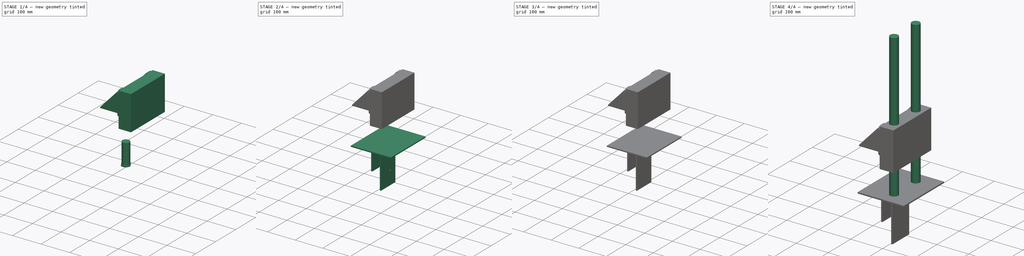
[diagram: build sequence overview — one tinted view per stage of 4, left to right]
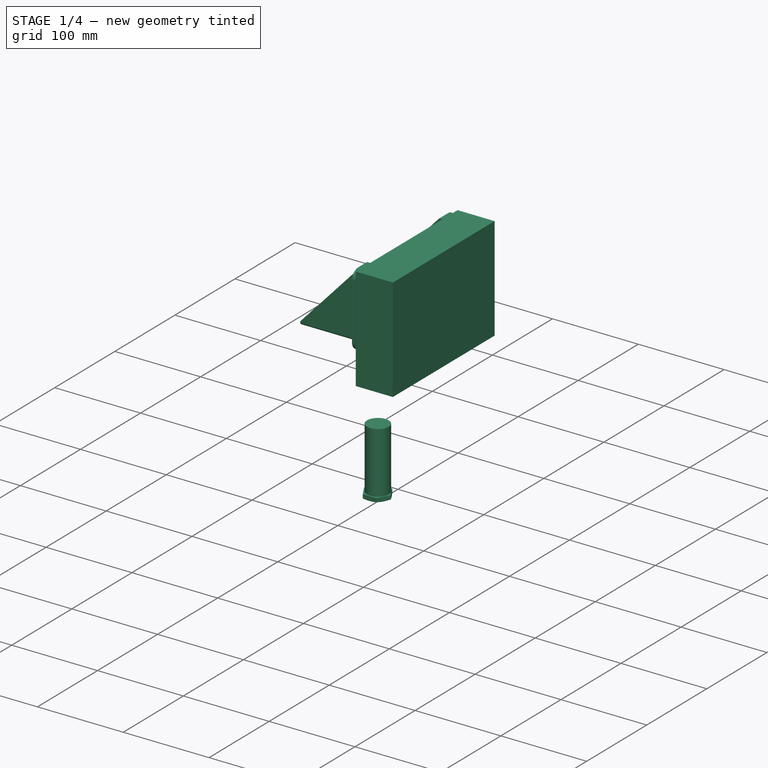
[diagram: stage 1 of 4 — iso view after this stage's code; geometry added in this stage tinted green]
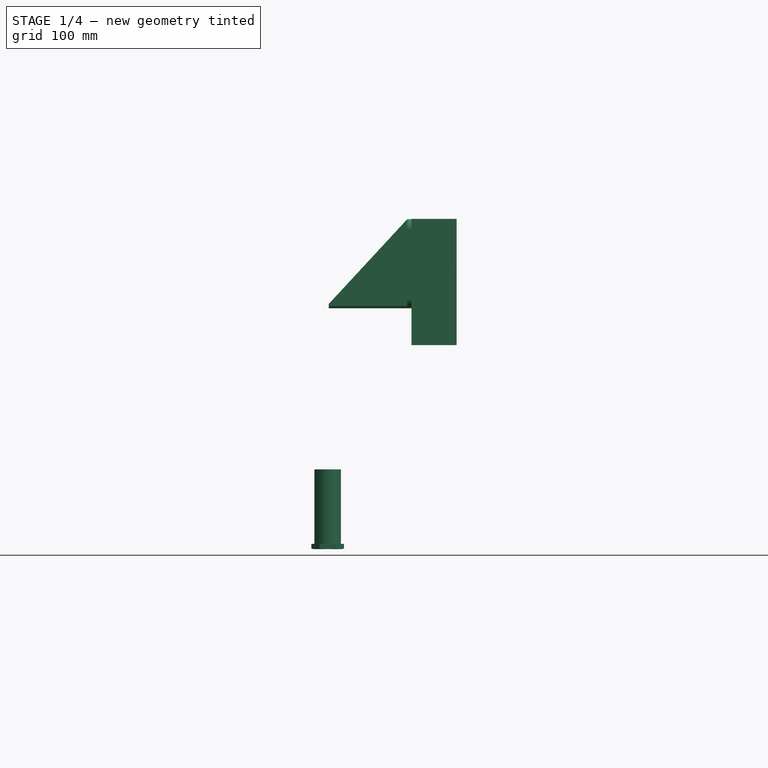
[diagram: stage 1 of 4 — front view after this stage's code; geometry added in this stage tinted green]
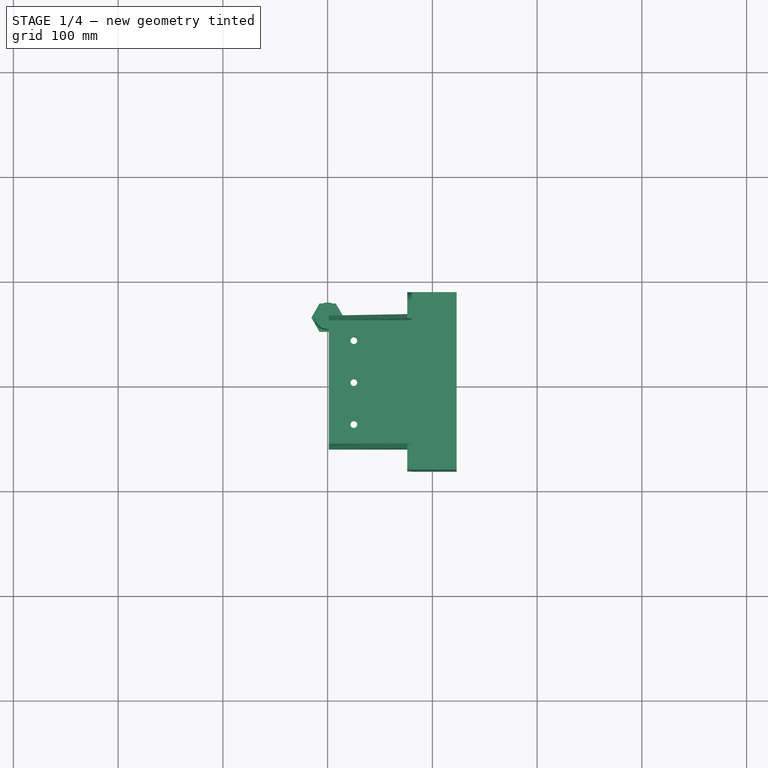
[diagram: stage 1 of 4 — top view after this stage's code; geometry added in this stage tinted green]
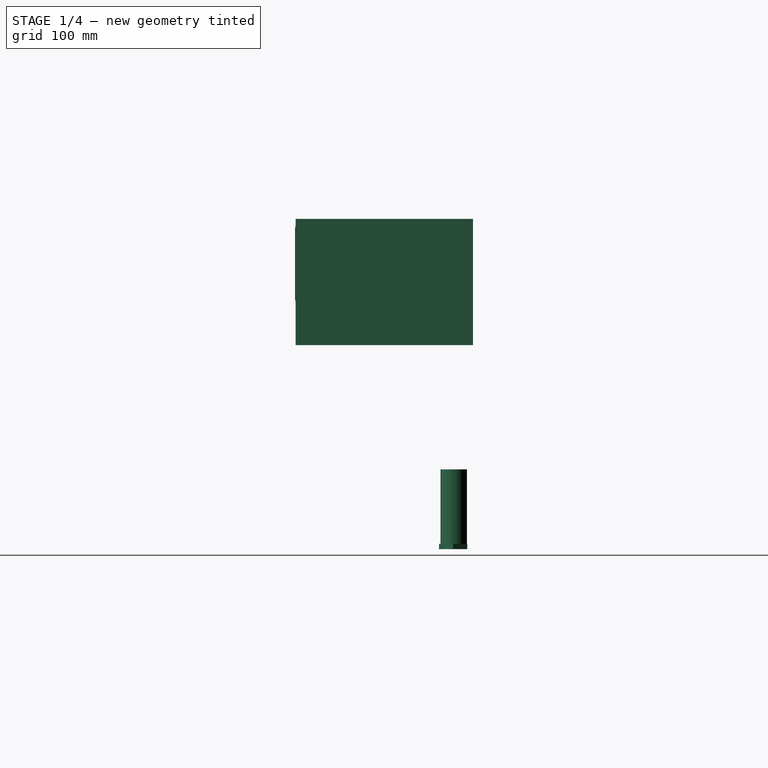
[diagram: stage 1 of 4 — right view after this stage's code; geometry added in this stage tinted green]
FCSTD DOCUMENT  (FreeCAD 0.16R6712 (Git))
Label: small head
License: All rights reserved
LicenseURL: http://en.wikipedia.org/wiki/All_rights_reserved
objects: Part::Feature×15, Sketcher::SketchObject×8, PartDesign::Pad×5, Part::Cylinder×2, PartDesign::Pocket×2, App::MeasureDistance×1
note: 39 computed .brp shape members not serialized (recipe doc carries the construction recipe); baked Part::Feature solids carry a one-line shape summary decoded from their .brp

FEATURE [Sketcher::SketchObject] Sketch005
  Placement = pos=(0,0,0) rot=(1,0,0;3.14159rad)
  sketch-geometry (7):
    g0: LineSegment [constr] StartX=0 StartY=0 StartZ=0 EndX=-100 EndY=0 EndZ=0
    g1: LineSegment [constr] StartX=-100 StartY=0 StartZ=0 EndX=-100 EndY=-66.5 EndZ=0
    g2: LineSegment [constr] StartX=-100 StartY=-66.5 StartZ=0 EndX=0 EndY=-66.5 EndZ=0
    g3: LineSegment [constr] StartX=0 StartY=-66.5 StartZ=0 EndX=0 EndY=0 EndZ=0
    g4: Circle CenterX=-100 CenterY=-66.5 CenterZ=0 NormalX=0 NormalY=0 NormalZ=1 Radius=10.6151
    g5: ArcOfCircle CenterX=-100 CenterY=-66.5 CenterZ=0 NormalX=0 NormalY=0 NormalZ=1 Radius=12.462 StartAngle=1.5708 EndAngle=4.71239
    g6: LineSegment [constr] StartX=-100 StartY=-66.5 StartZ=0 EndX=-100 EndY=-78.962 EndZ=0
  constraints (17):
    c: Coincident(g0,g1)
    c: Coincident(g1,g2)
    c: Coincident(g2,g3)
    c: Coincident(g3,g0)
    c: Horizontal(g0)
    c: Horizontal(g2)
    c: Vertical(g1)
    c: Vertical(g3)
    c: Coincident(g0,g-1)
    c: DistanceX(g2,g2) = 100
    c: DistanceY(g1,g1) = 66.5
    c: Coincident(g4,g1)
    c: Coincident(g5,g1)
    c: PointOnObject(g5,g1)
    c: Coincident(g6,g1)
    c: Coincident(g6,g5)
    c: Vertical(g6)
FEATURE [Part::Feature] Cut001  label="z_probe_half_nut"
  Placement = pos=(-100,66,-576) rot=(1,0,0;1.5708rad)
  shape: bbox 31.18 x 31.18 x 5 mm, 17 faces (baked)
FEATURE [Part::Feature] Cut002  label="z_probe_half_nut001"
  Placement = pos=(-100,66,-571) rot=(1,0,0;1.5708rad)
  shape: bbox 31.18 x 31.18 x 5 mm, 17 faces (baked)
FEATURE [Part::Feature] Pocket013011  label="valve_mount"
  Placement = pos=(-20,0,-315) rot=(0.57735,-0.57735,-0.57735;2.0944rad)
  shape: bbox 79 x 170 x 85 mm, 41 faces (baked)
FEATURE [Part::Feature] Pad002001  label="igniter_power_suply"
  Placement = pos=(26,0,-345) rot=(0.57735,0.57735,0.57735;2.0944rad)
  shape: bbox 53 x 166 x 66 mm, 59 faces (baked)
FEATURE [Part::Feature] Fusion002004  label="torch_tip001"
  Placement = pos=(-8,0,-503) rot=(0,0,1;3.14159rad)
  shape: bbox 171 x 35.37 x 108.6 mm, 68 faces (baked)
FEATURE [App::MeasureDistance] Distance  label="Distance: 6.6357 in"
  Distance = 168.547
  P1 = (10.5649,-81.6552,-270)
  P2 = (33.9754,85,-260.727)
FEATURE [Sketcher::SketchObject] Sketch006
  Placement = pos=(-100,66,-585) rot=(1,0,0;3.14159rad)
  Support = -> Cut001 [Face3]
  sketch-geometry (1):
    g0: Circle CenterX=0 CenterY=-0.598412 CenterZ=0 NormalX=0 NormalY=0 NormalZ=1 Radius=12.6562
  constraints (1):
    c: PointOnObject(g0,g-2)
FEATURE [PartDesign::Pad] Pad002002
  Length = 76.2
  Length2 = 100
  Placement = pos=(-100,66,-576) rot=(1,0,0;1.5708rad)
  Reversed = true
  Sketch = -> Sketch006
  Type = 0
FEATURE [Sketcher::SketchObject] Sketch007
  Placement = pos=(-20,0,-315) rot=(0.57735,-0.57735,0.57735;4.18879rad)
  Support = -> Pocket013011 [Face5]
  sketch-geometry (4):
    g0: LineSegment StartX=-84.9979 StartY=75.2847 StartZ=0 EndX=84.3762 EndY=75.2847 EndZ=0
    g1: LineSegment StartX=84.3762 StartY=75.2847 StartZ=0 EndX=84.3762 EndY=-45.3097 EndZ=0
    g2: LineSegment StartX=84.3762 StartY=-45.3097 StartZ=0 EndX=-84.9979 EndY=-45.3097 EndZ=0
    g3: LineSegment StartX=-84.9979 StartY=-45.3097 StartZ=0 EndX=-84.9979 EndY=75.2847 EndZ=0
  constraints (8):
    c: Coincident(g0,g1)
    c: Coincident(g1,g2)
    c: Coincident(g2,g3)
    c: Coincident(g3,g0)
    c: Horizontal(g0)
    c: Horizontal(g2)
    c: Vertical(g1)
    c: Vertical(g3)
FEATURE [PartDesign::Pad] Pad002003
  Length = 43.18
  Length2 = 100
  Placement = pos=(-20,0,-315) rot=(0.57735,-0.57735,-0.57735;2.0944rad)
  Sketch = -> Sketch007
  Type = 0
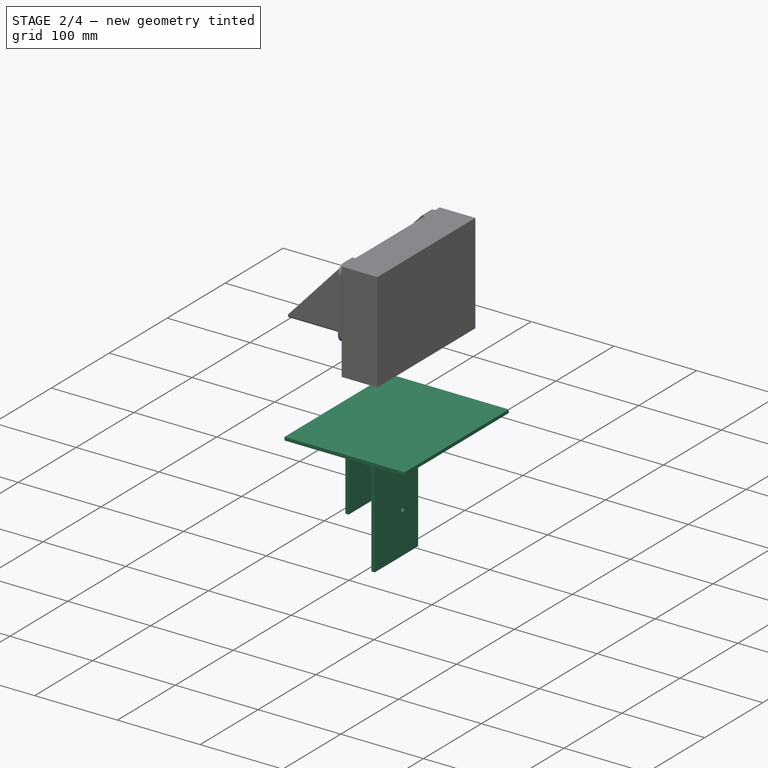
[diagram: stage 2 of 4 — iso view after this stage's code; geometry added in this stage tinted green]
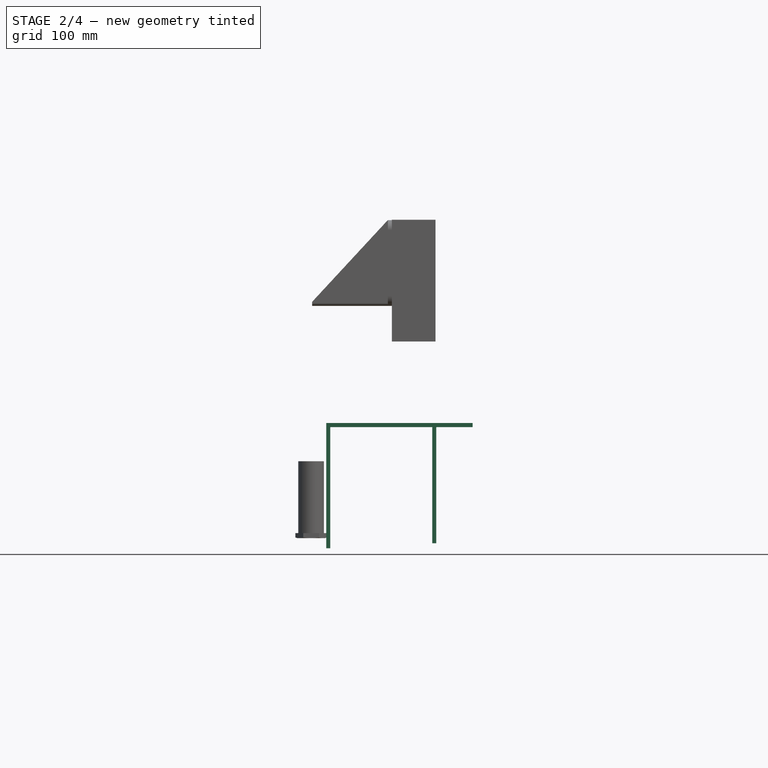
[diagram: stage 2 of 4 — front view after this stage's code; geometry added in this stage tinted green]
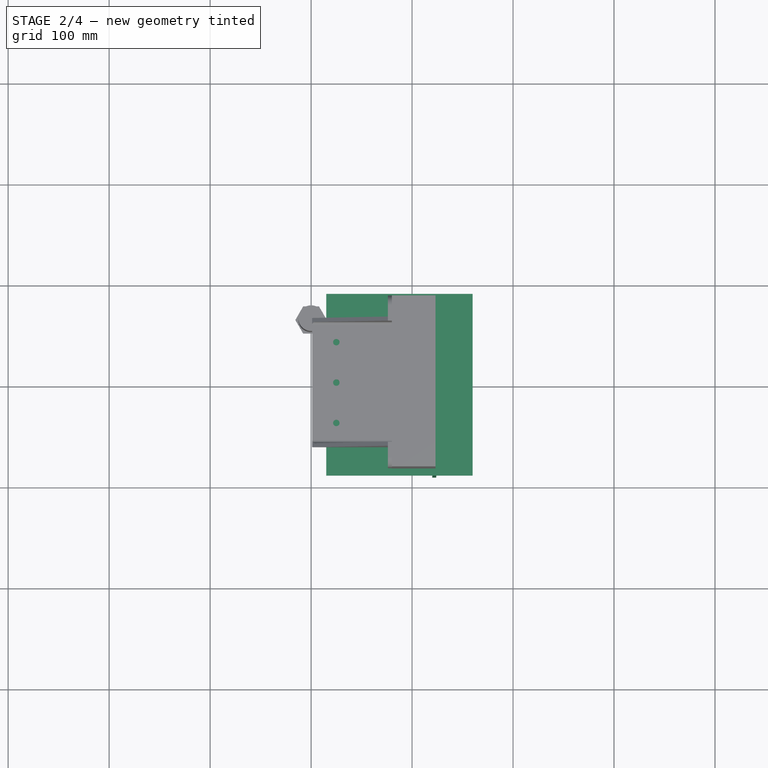
[diagram: stage 2 of 4 — top view after this stage's code; geometry added in this stage tinted green]
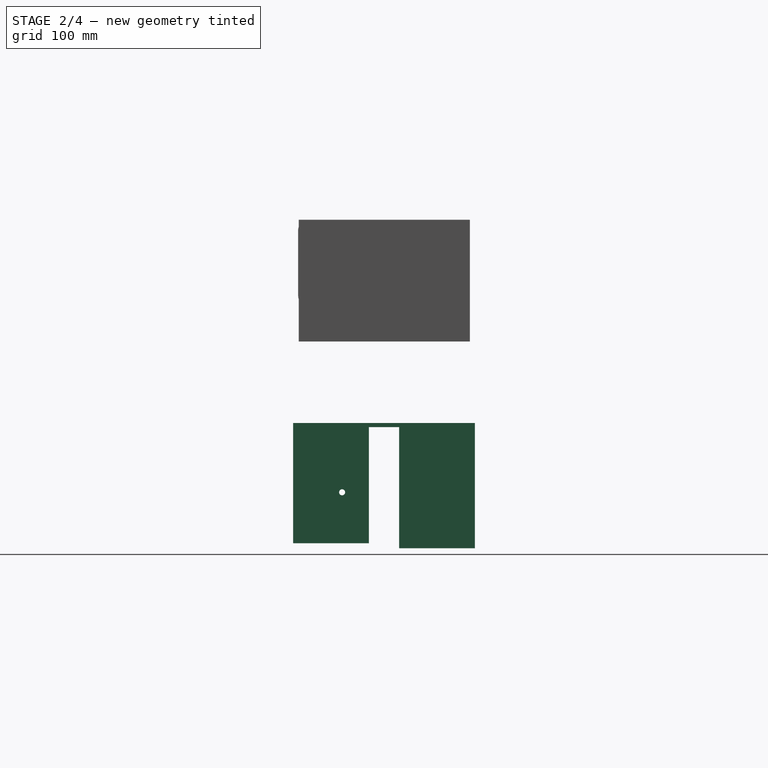
[diagram: stage 2 of 4 — right view after this stage's code; geometry added in this stage tinted green]
FEATURE [Sketcher::SketchObject] Sketch003
  ExternalGeometry = -> [Pad005]
  Placement = pos=(20,90,0) rot=(0.707107,0,-0.707107;3.14159rad)
  sketch-geometry (5):
    g0: LineSegment [constr] StartX=590 StartY=105 StartZ=0 EndX=539.6 EndY=105 EndZ=0
    g1: LineSegment [constr] StartX=539.6 StartY=105 StartZ=0 EndX=539.6 EndY=131.5 EndZ=0
    g2: LineSegment [constr] StartX=539.6 StartY=131.5 StartZ=0 EndX=590 EndY=131.5 EndZ=0
    g3: LineSegment [constr] StartX=590 StartY=131.5 StartZ=0 EndX=590 EndY=105 EndZ=0
    g4: Circle CenterX=539.6 CenterY=131.5 CenterZ=0 NormalX=0 NormalY=0 NormalZ=1 Radius=3
  constraints (13):
    c: Coincident(g0,g1)
    c: Coincident(g1,g2)
    c: Coincident(g2,g3)
    c: Coincident(g3,g0)
    c: Horizontal(g0)
    c: Horizontal(g2)
    c: Vertical(g1)
    c: Vertical(g3)
    c: Coincident(g0,g-4)
    c: DistanceX(g2,g2) = 50.4
    c: DistanceY(g1,g1) = 26.5
    c: Coincident(g4,g1)
    c: Radius(g4) = 3
FEATURE [PartDesign::Pocket] Pocket
  Length = 5
  Placement = pos=(0,90,0) rot=(1,0,0;1.5708rad)
  Type = 2
FEATURE [Sketcher::SketchObject] Sketch004
  Placement = pos=(0,90,-475) rot=(1,0,0;3.14159rad)
  sketch-geometry (3):
    g0: Circle CenterX=0 CenterY=120 CenterZ=0 NormalX=0 NormalY=0 NormalZ=1 Radius=3.5
    g1: Circle CenterX=0 CenterY=90 CenterZ=0 NormalX=0 NormalY=0 NormalZ=1 Radius=3.5
    g2: Circle CenterX=0 CenterY=60 CenterZ=0 NormalX=0 NormalY=0 NormalZ=1 Radius=3.5
  constraints (9):
    c: PointOnObject(g0,g-2)
    c: PointOnObject(g1,g-2)
    c: PointOnObject(g2,g-2)
    c: Equal(g2,g1)
    c: Equal(g1,g0)
    c: Radius(g0) = 3.5
    c: DistanceY(g-1,g0) = 120
    c: DistanceY(g1,g0) = 30
    c: DistanceY(g2,g1) = 30
FEATURE [PartDesign::Pocket] Pocket013010  label="bottom_plate"
  Length = 5
  Placement = pos=(0,90,0) rot=(1,0,0;1.5708rad)
  Type = 2
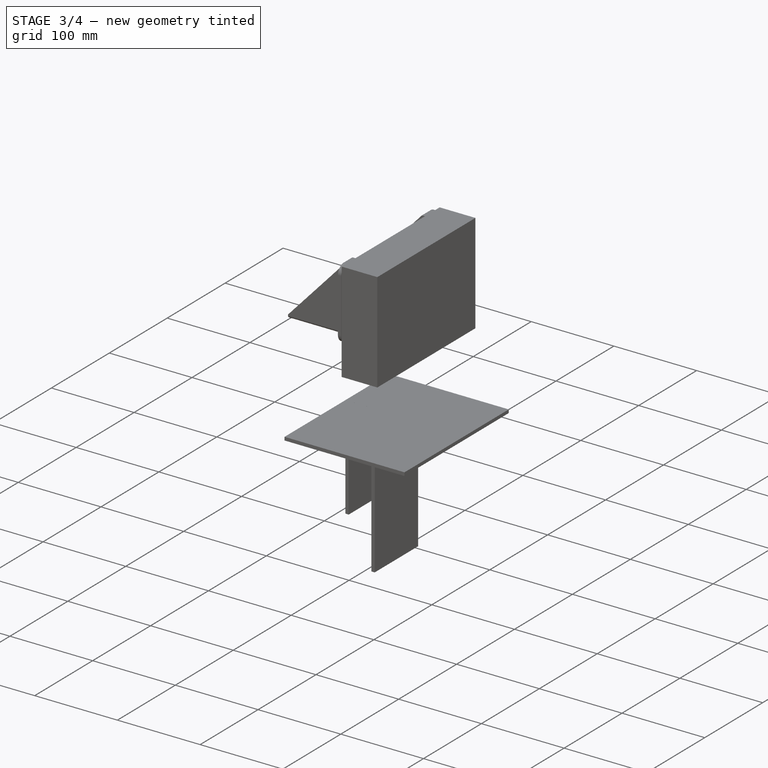
[diagram: stage 3 of 4 — iso view after this stage's code; geometry added in this stage tinted green]
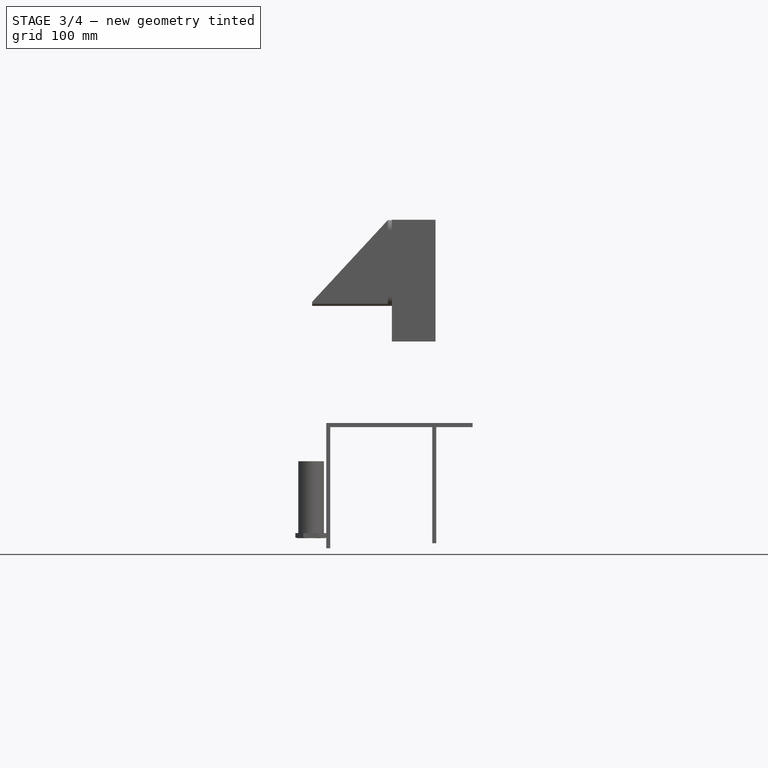
[diagram: stage 3 of 4 — front view after this stage's code; geometry added in this stage tinted green]
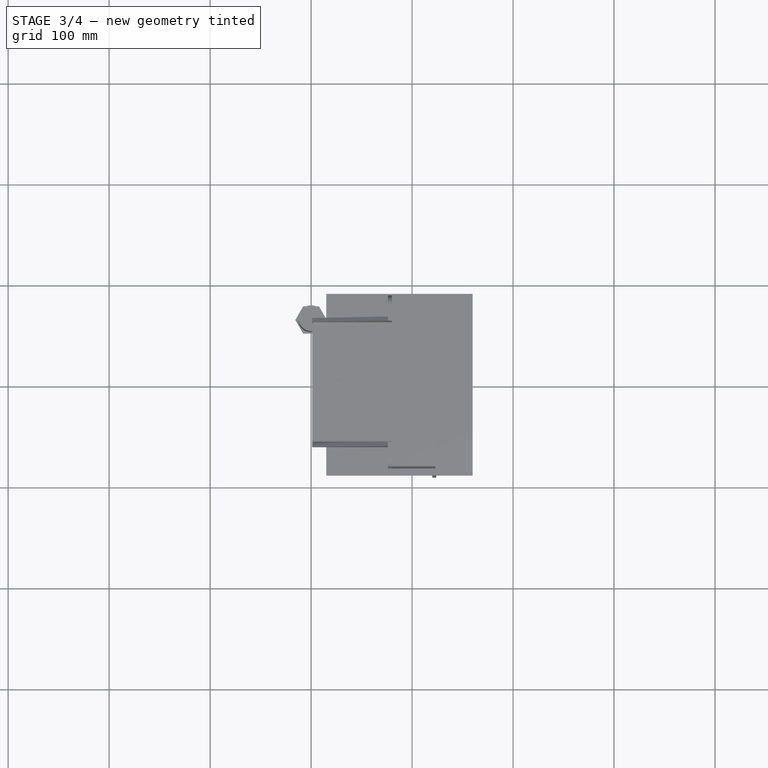
[diagram: stage 3 of 4 — top view after this stage's code; geometry added in this stage tinted green]
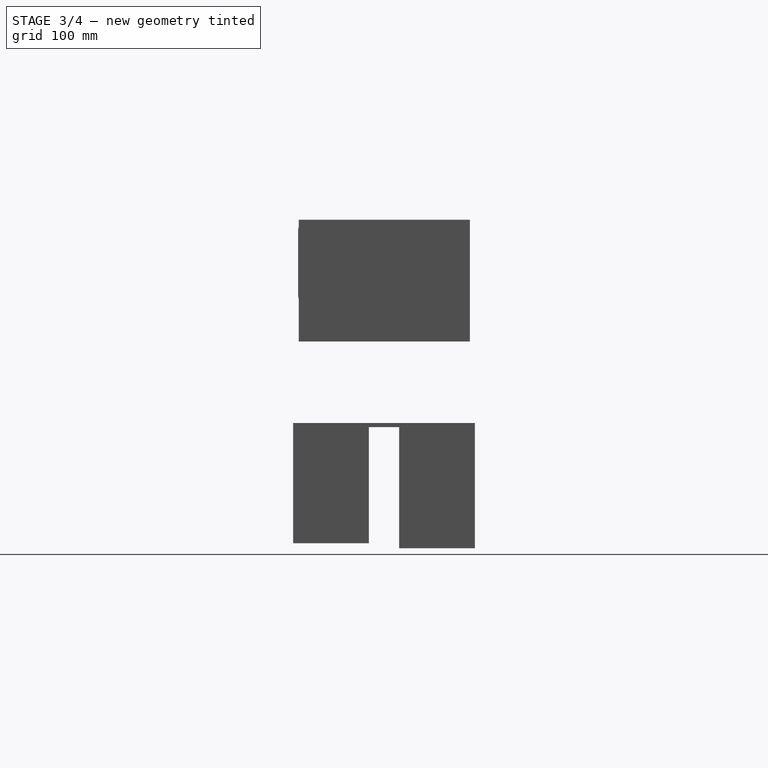
[diagram: stage 3 of 4 — right view after this stage's code; geometry added in this stage tinted green]
FEATURE [Part::Feature] Pocket001001  label="nema23_motor"
  Placement = pos=(-21.5,0,-59.3) rot=(0,1,0;1.5708rad)
  shape: bbox 137 x 57 x 57 mm, 36 faces (baked)
FEATURE [Part::Feature] Pocket013007  label="idler_z_1"
  Placement = pos=(0,0,-421) rot=(0,-1,0;1.5708rad)
  shape: bbox 20.32 x 120.5 x 70 mm, 81 faces (baked)
FEATURE [Part::Feature] Fusion002001  label="fl_205_1_cut_oxy"
  Placement = pos=(-75,0,-338.5) rot=(0,0,1;3.14159rad)
  shape: bbox 54 x 34 x 70 mm, 60 faces (baked)
FEATURE [Part::Feature] Chamfer001  label="pipe_90_deg_cut_oxy"
  Placement = pos=(-60,0,-338.5) rot=(0,0,1;3.14159rad)
  shape: bbox 49.77 x 15 x 54.77 mm, 8 faces (baked)
FEATURE [Part::Feature] Fusion002002  label="fl_205_1_mix_oxy"
  Placement = pos=(-75,-40,-338.5) rot=(0,0,1;3.14159rad)
  shape: bbox 54 x 34 x 70 mm, 60 faces (baked)
FEATURE [Part::Feature] Chamfer002  label="pipe_90_deg_mix_oxy"
  Placement = pos=(-60,-40,-338.5) rot=(0,0,1;3.14159rad)
  shape: bbox 49.77 x 15 x 54.77 mm, 8 faces (baked)
FEATURE [Part::Feature] Fusion002003  label="fl_205_1_cut_oxy001"
  Placement = pos=(-75,40,-338.5) rot=(0,0,1;3.14159rad)
  shape: bbox 54 x 34 x 70 mm, 60 faces (baked)
FEATURE [Part::Feature] Chamfer003  label="pipe_90_deg_cut_oxy001"
  Placement = pos=(-60,40,-338.5) rot=(0,0,1;3.14159rad)
  shape: bbox 49.77 x 15 x 54.77 mm, 8 faces (baked)
FEATURE [Part::Feature] Pocket013009  label="igniter"
  Placement = pos=(20,-34,-532) rot=(0,0,1;3.14159rad)
  shape: bbox 40 x 55 x 82 mm, 24 faces (baked)
FEATURE [Sketcher::SketchObject] Sketch
  Placement = pos=(0,90,0) rot=(1,0,0;1.5708rad)
  sketch-geometry (7):
    g0: LineSegment StartX=-85 StartY=-595 StartZ=0 EndX=-85 EndY=-471 EndZ=0
    g1: LineSegment StartX=-85 StartY=-471 StartZ=0 EndX=60 EndY=-471 EndZ=0
    g2: LineSegment StartX=60 StartY=-471 StartZ=0 EndX=60 EndY=-475 EndZ=0
    g3: LineSegment StartX=60 StartY=-475 StartZ=0 EndX=-81 EndY=-475 EndZ=0
    g4: LineSegment StartX=-81 StartY=-475 StartZ=0 EndX=-81 EndY=-595 EndZ=0
    g5: LineSegment StartX=-81 StartY=-595 StartZ=0 EndX=-85 EndY=-595 EndZ=0
    g6: LineSegment [constr] StartX=0 StartY=0 StartZ=0 EndX=0 EndY=-471 EndZ=0
  constraints (21):
    c: Vertical(g0)
    c: Coincident(g0,g1)
    c: Horizontal(g1)
    c: Coincident(g1,g2)
    c: Vertical(g2)
    c: Coincident(g2,g3)
    c: Horizontal(g3)
    c: Coincident(g3,g4)
    c: Vertical(g4)
    c: Coincident(g4,g5)
    c: Coincident(g5,g0)
    c: Horizontal(g5)
    c: Equal(g2,g5)
    c: DistanceX(g5,g5) = 4
    c: DistanceY(g0,g0) = 124
    c: DistanceX(g1,g1) = 145
    c: Coincident(g6,g-1)
    c: Vertical(g6)
    c: DistanceY(g6,g6) = 471
    c: PointOnObject(g6,g1)
    c: DistanceX(g6,g1) = 60
FEATURE [PartDesign::Pad] Pad
  Length = 75
  Length2 = 100
  Placement = pos=(0,90,0) rot=(1,0,0;1.5708rad)
  Type = 0
FEATURE [Sketcher::SketchObject] Sketch001
  ExternalGeometry = -> [Pad]
  Placement = pos=(0,15,0) rot=(1,0,0;1.5708rad)
  sketch-geometry (4):
    g0: LineSegment StartX=-85 StartY=-471 StartZ=0 EndX=60 EndY=-471 EndZ=0
    g1: LineSegment StartX=60 StartY=-471 StartZ=0 EndX=60 EndY=-475 EndZ=0
    g2: LineSegment StartX=60 StartY=-475 StartZ=0 EndX=-85 EndY=-475 EndZ=0
    g3: LineSegment StartX=-85 StartY=-471 StartZ=0 EndX=-85 EndY=-475 EndZ=0
  constraints (11):
    c: Coincident(g0,g1)
    c: Coincident(g1,g2)
    c: Horizontal(g0)
    c: Horizontal(g2)
    c: Vertical(g1)
    c: Coincident(g1,g-4)
    c: PointOnObject(g0,g-3)
    c: Coincident(g3,g0)
    c: Coincident(g3,g2)
    c: Vertical(g3)
    c: DistanceX(g0,g0) = 145
FEATURE [PartDesign::Pad] Pad004
  Length = 30
  Length2 = 100
  Placement = pos=(0,90,0) rot=(1,0,0;1.5708rad)
  Type = 0
FEATURE [Sketcher::SketchObject] Sketch002
  ExternalGeometry = -> [Pad004]
  Placement = pos=(0,-15,0) rot=(1,0,0;1.5708rad)
  sketch-geometry (8):
    g0: LineSegment StartX=-85 StartY=-471 StartZ=0 EndX=60 EndY=-471 EndZ=0
    g1: LineSegment StartX=60 StartY=-471 StartZ=0 EndX=60 EndY=-475 EndZ=0
    g2: LineSegment StartX=60 StartY=-475 StartZ=0 EndX=24 EndY=-475 EndZ=0
    g3: LineSegment StartX=24 StartY=-475 StartZ=0 EndX=24 EndY=-590 EndZ=0
    g4: LineSegment StartX=24 StartY=-590 StartZ=0 EndX=20 EndY=-590 EndZ=0
    g5: LineSegment StartX=20 StartY=-590 StartZ=0 EndX=20 EndY=-475 EndZ=0
    g6: LineSegment StartX=20 StartY=-475 StartZ=0 EndX=-85 EndY=-475 EndZ=0
    g7: LineSegment StartX=-85 StartY=-475 StartZ=0 EndX=-85 EndY=-471 EndZ=0
  constraints (21):
    c: Coincident(g-3,g0)
    c: Coincident(g0,g-4)
    c: Coincident(g0,g1)
    c: Coincident(g1,g-4)
    c: Coincident(g1,g2)
    c: Horizontal(g2)
    c: Coincident(g2,g3)
    c: Vertical(g3)
    c: Coincident(g3,g4)
    c: Coincident(g4,g5)
    c: Vertical(g5)
    c: Coincident(g5,g6)
    c: Horizontal(g6)
    c: Coincident(g6,g7)
    c: Coincident(g7,g0)
    c: Horizontal(g4)
    c: Vertical(g7)
    c: Equal(g7,g4)
    c: Equal(g4,g-4)
    c: DistanceX(g2,g2) = 36
    c: DistanceY(g3,g3) = 115
FEATURE [PartDesign::Pad] Pad005
  Length = 75
  Length2 = 100
  Placement = pos=(0,90,0) rot=(1,0,0;1.5708rad)
  Type = 0
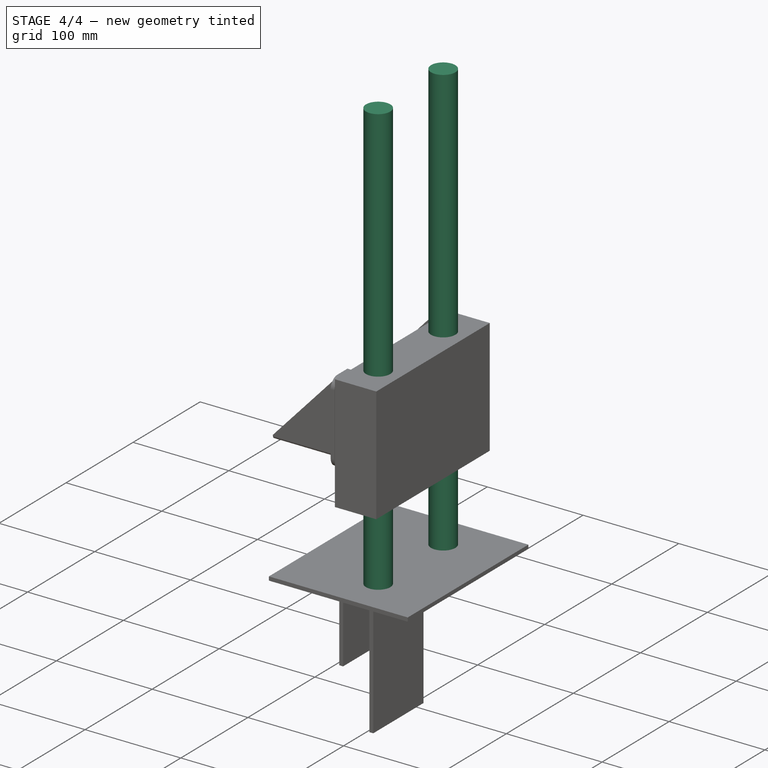
[diagram: stage 4 of 4 — iso view after this stage's code; geometry added in this stage tinted green]
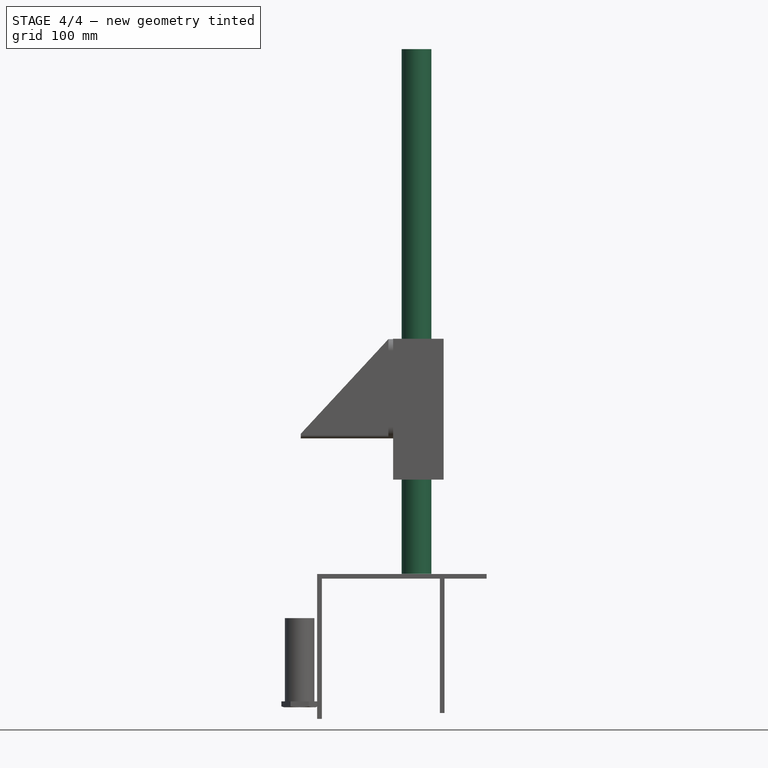
[diagram: stage 4 of 4 — front view after this stage's code; geometry added in this stage tinted green]
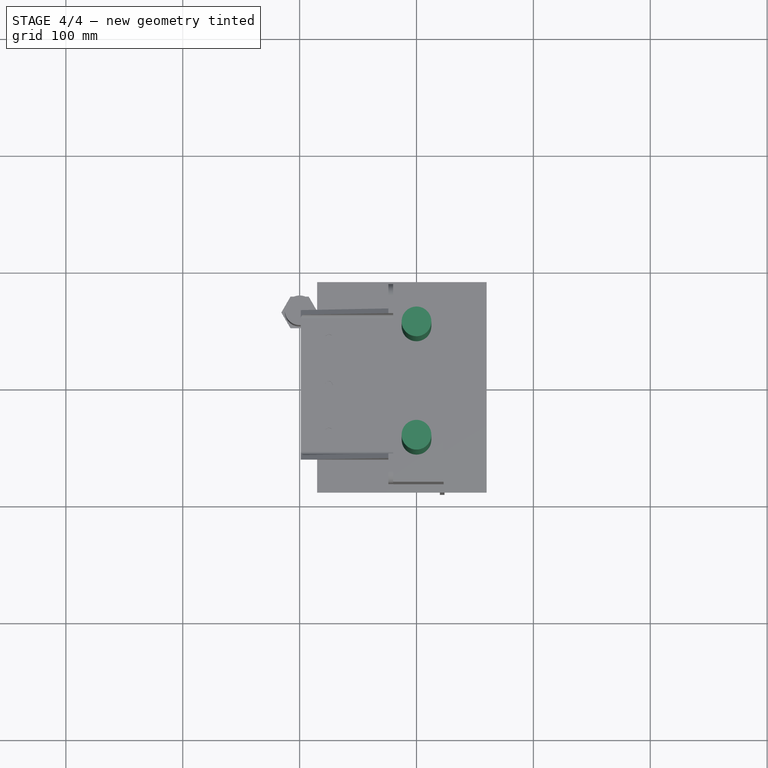
[diagram: stage 4 of 4 — top view after this stage's code; geometry added in this stage tinted green]
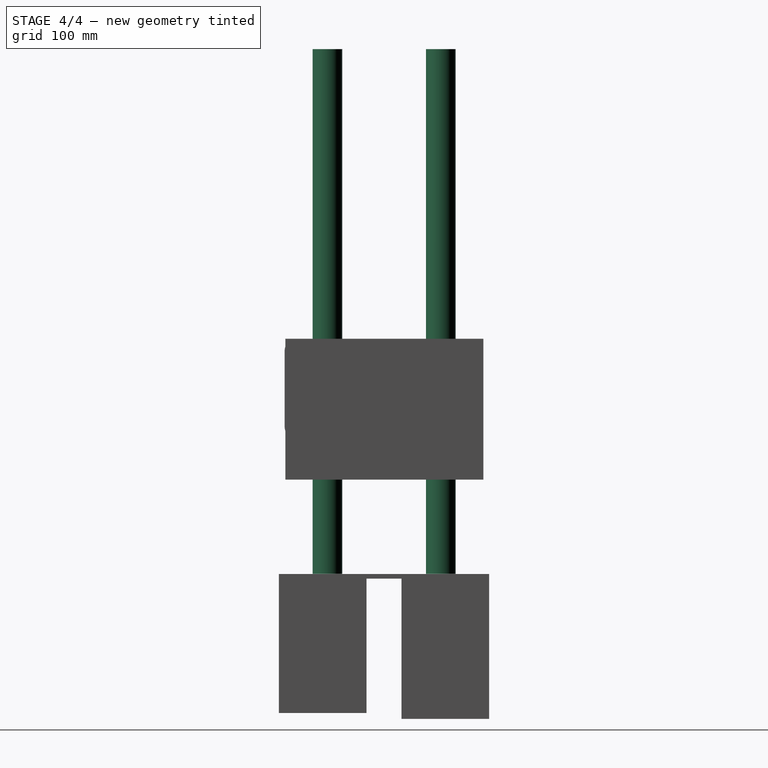
[diagram: stage 4 of 4 — right view after this stage's code; geometry added in this stage tinted green]
FEATURE [Part::Feature] Pocket013006  label="motor_piece_z_2"
  Placement = pos=(0,0,-59.4) rot=(0.707107,0,-0.707107;3.14159rad)
  shape: bbox 20 x 120 x 75 mm, 105 faces (baked)
FEATURE [Part::Cylinder] Cylinder  label="rod_z_1"
  Angle = 360
  Height = 449
  Placement = pos=(0,48.6,-470.9) rot=(0,0,1;0rad)
  Radius = 12.7
FEATURE [Part::Cylinder] Cylinder001  label="rod_z_2"
  Angle = 360
  Height = 449
  Placement = pos=(0,-48.4,-470.9) rot=(0,0,1;0rad)
  Radius = 12.7
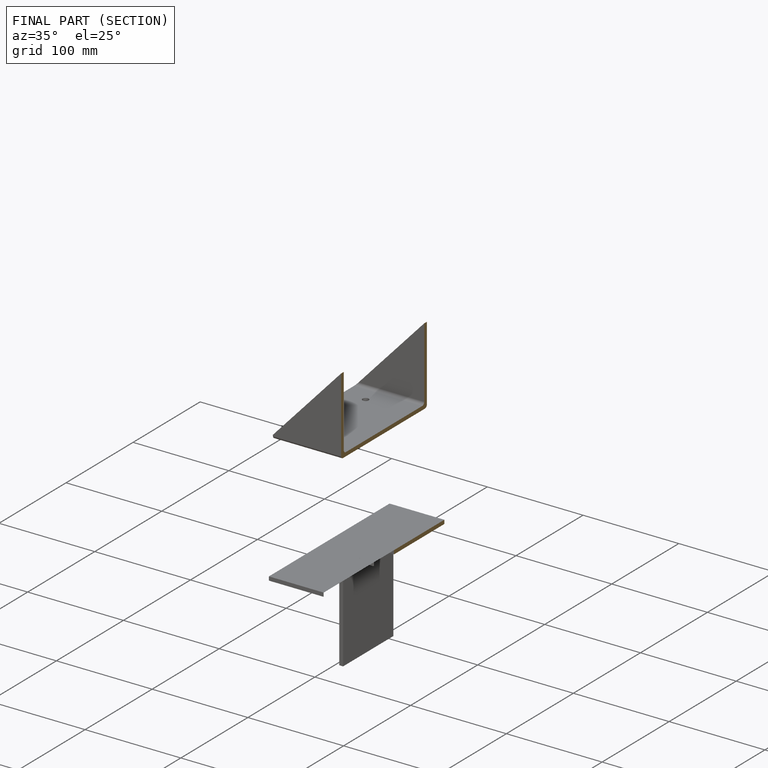
[diagram: finished part — half-section view (interior)]
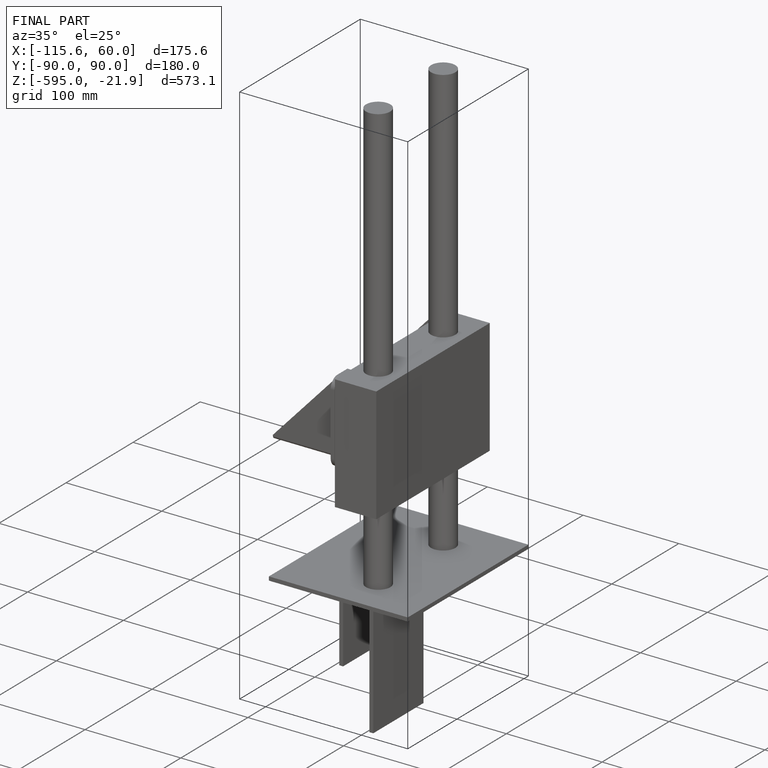
[diagram: finished part — iso view with bounding-box wireframe]
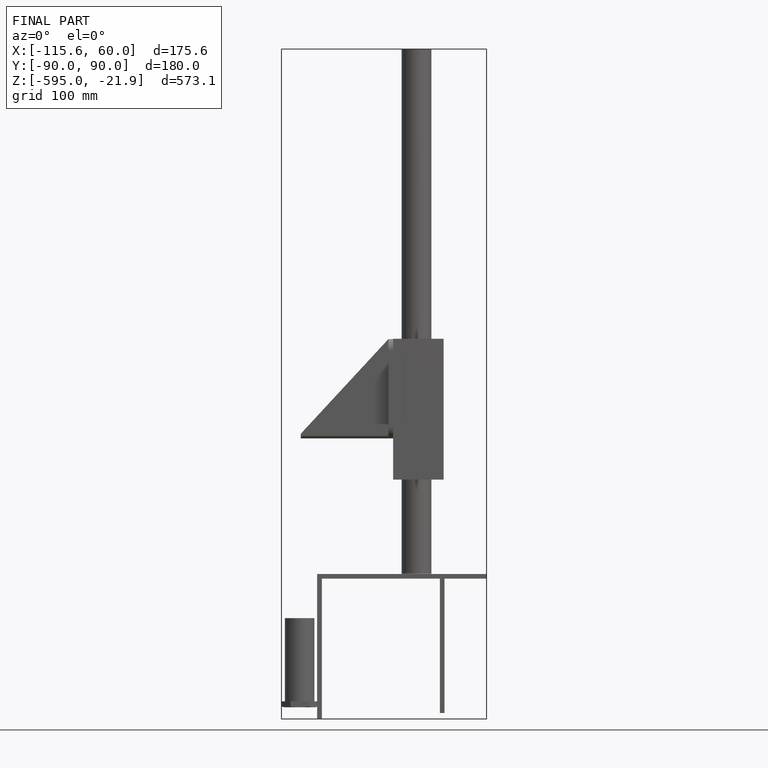
[diagram: finished part — front view with bounding-box wireframe]
